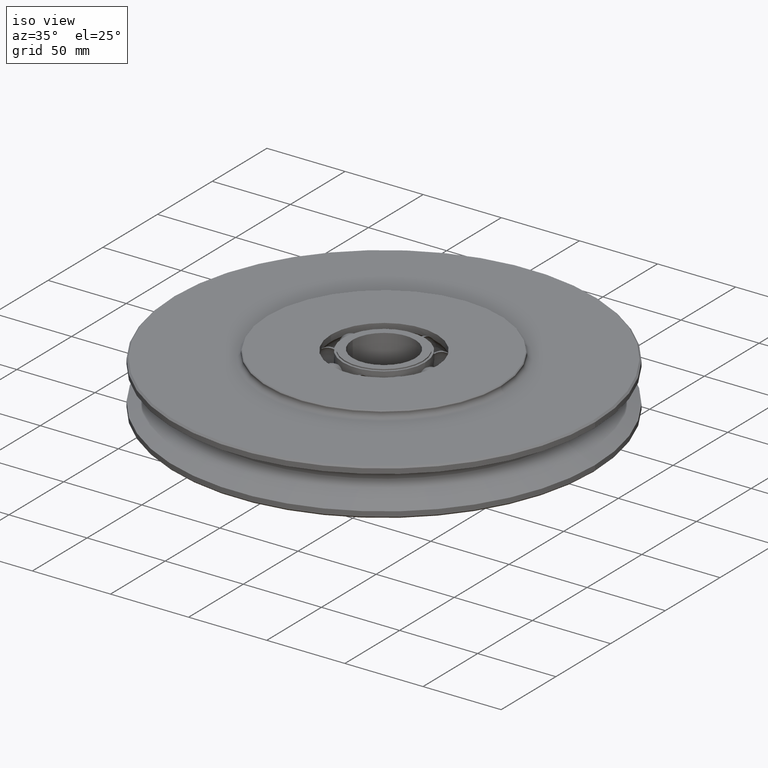
[diagram: clean part render]
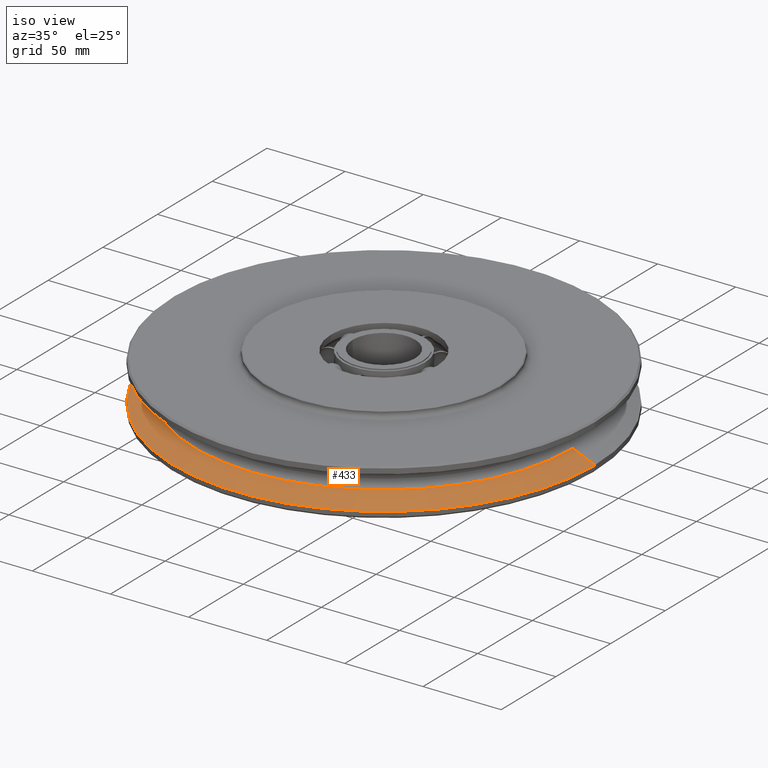
[diagram: same view with one face highlighted and labeled with its STEP entity id]
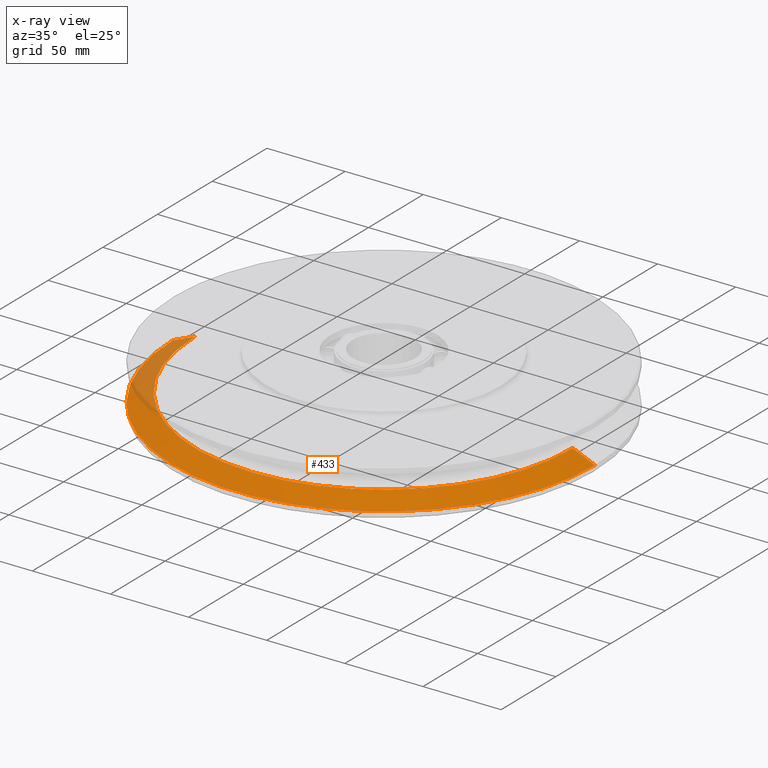
[diagram: x-ray of the same camera — body ghosted, the highlighted face saturated]
A machine part, iso view. The second image highlights one B-rep face of the part: STEP entity #433.
The next image is the same camera in x-ray: the body ghosted, the highlighted face saturated — about 10% of this face is hidden behind the body in this view.
In plain terms, the highlighted conical surface has half-angle 67.5 deg.
Its self-contained STEP definition (entity closure, byte-faithful):
#433=ADVANCED_FACE('',(#890),#891,.T.);
#890=FACE_OUTER_BOUND('',#1340,.T.);
#891=CONICAL_SURFACE('',#1341,127.885889,1.17809727634237);
#1340=EDGE_LOOP('',(#2791,#2792,#2793,#2794));
#1341=AXIS2_PLACEMENT_3D('',#2795,#2796,#2797);
#2791=ORIENTED_EDGE('',*,*,#2930,.T.);
#2792=ORIENTED_EDGE('',*,*,#2927,.F.);
#2793=ORIENTED_EDGE('',*,*,#2932,.T.);
#2794=ORIENTED_EDGE('',*,*,#3405,.T.);
#2795=CARTESIAN_POINT('',(0.0,0.0,-7.843323));
#2796=DIRECTION('',(-0.0,-0.0,-1.0));
#2797=DIRECTION('',(1.0,0.0,0.0));
#2927=EDGE_CURVE('',#3603,#3605,#3606,.T.);
#2930=EDGE_CURVE('',#3609,#3605,#3610,.T.);
#2932=EDGE_CURVE('',#3603,#3611,#3613,.T.);
#3405=EDGE_CURVE('',#3611,#3609,#4310,.T.);
#3603=VERTEX_POINT('',#6022);
#3605=VERTEX_POINT('',#6024);
#3606=CIRCLE('',#6025,120.771778);
#3609=VERTEX_POINT('',#6028);
#3610=LINE('',#6029,#6030);
#3611=VERTEX_POINT('',#6031);
#3613=LINE('',#6033,#6034);
#4310=CIRCLE('',#10425,135.0);
#6022=CARTESIAN_POINT('',(-120.771778,1.47902771355035E-014,-4.896562));
#6024=CARTESIAN_POINT('',(120.771778,0.0,-4.896562));
#6025=AXIS2_PLACEMENT_3D('',#10582,#10583,#10584);
#6028=CARTESIAN_POINT('',(135.0,0.0,-10.790084));
#6029=CARTESIAN_POINT('',(127.885889,-1.56615044619964E-014,-7.843323));
#6030=VECTOR('',#10588,1.0);
#6031=CARTESIAN_POINT('',(-135.0,1.65327317884893E-014,-10.790084));
#6033=CARTESIAN_POINT('',(-127.885889,1.56615044619964E-014,-7.843323));
#6034=VECTOR('',#10592,1.0);
#10425=AXIS2_PLACEMENT_3D('',#11113,#11114,#11115);
#10582=CARTESIAN_POINT('',(0.0,0.0,-4.896562));
#10583=DIRECTION('',(0.0,0.0,1.0));
#10584=DIRECTION('',(1.0,0.0,0.0));
#10588=DIRECTION('',(-0.923879544468687,1.13142612693129E-016,0.382683403497372));
#10592=DIRECTION('',(-0.923879544468687,1.13142612693129E-016,-0.382683403497372));
#11113=CARTESIAN_POINT('',(0.0,0.0,-10.790084));
#11114=DIRECTION('',(0.0,0.0,1.0));
#11115=DIRECTION('',(1.0,0.0,0.0));